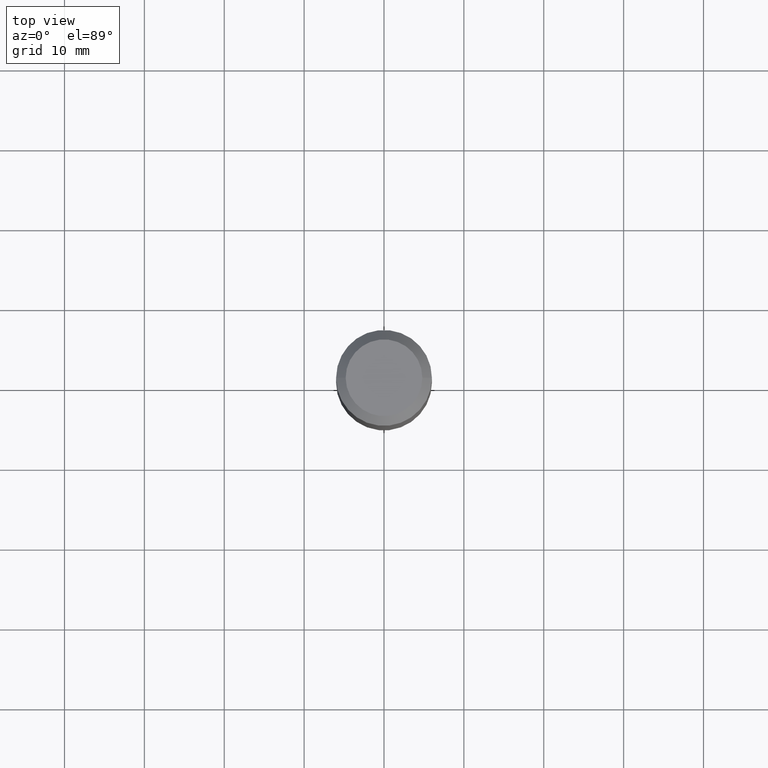
[diagram: clean part render]
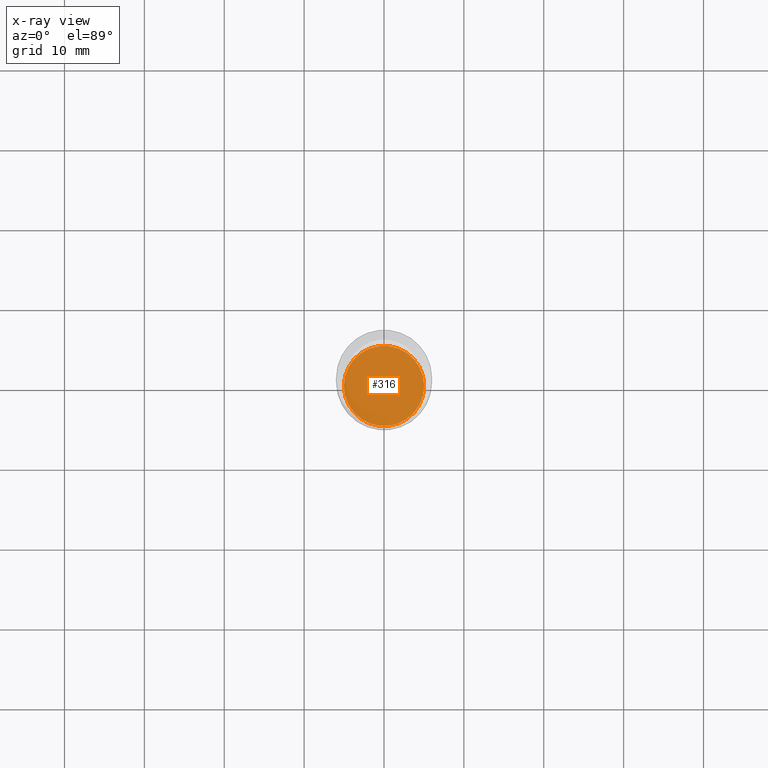
[diagram: x-ray — body ghosted, one internal face saturated and labeled with its STEP entity id]
A machine part, top view, then the same camera in x-ray: the body is ghosted and one INTERNAL B-rep face — a face not visible from any outside direction — is saturated and labeled: STEP entity #316.
In plain terms, the highlighted planar face has unit normal (-0, 0, 1).
Its self-contained STEP definition (entity closure, byte-faithful):
#42 = CARTESIAN_POINT ( 'NONE',  ( 0.1980000000000000093, -9.574689275509554760E-15, -2.346299999999999830 ) ) ;
#62 = PLANE ( 'NONE',  #366 ) ;
#98 = DIRECTION ( 'NONE',  ( 1.000000000000000000, -6.982962677686265922E-15, 4.876176775795935793E-29 ) ) ;
#110 = CIRCLE ( 'NONE', #396, 0.1980000000000000093 ) ;
#121 = VERTEX_POINT ( 'NONE', #182 ) ;
#163 = CARTESIAN_POINT ( 'NONE',  ( 3.477250939119132197E-29, -1.142930253781982442E-14, -2.346299999999999830 ) ) ;
#169 = DIRECTION ( 'NONE',  ( -2.445468806185136597E-29, 3.491481338843145583E-15, 1.000000000000000000 ) ) ;
#172 = CARTESIAN_POINT ( 'NONE',  ( 5.737803459952185617E-29, -8.192062665327673446E-15, -2.346299999999999830 ) ) ;
#182 = CARTESIAN_POINT ( 'NONE',  ( -0.1980000000000000093, -6.782538821348561839E-15, -2.346299999999999830 ) ) ;
#193 = ORIENTED_EDGE ( 'NONE', *, *, #243, .F. ) ;
#243 = EDGE_CURVE ( 'NONE', #429, #121, #110, .T. ) ;
#247 = DIRECTION ( 'NONE',  ( -2.445468806185136597E-29, 3.491481338843145583E-15, 1.000000000000000000 ) ) ;
#284 = DIRECTION ( 'NONE',  ( 1.000000000000000000, -6.982962677686269077E-15, 0.000000000000000000 ) ) ;
#316 = ADVANCED_FACE ( 'NONE', ( #458 ), #62, .F. ) ;
#323 = AXIS2_PLACEMENT_3D ( 'NONE', #358, #169, #399 ) ;
#358 = CARTESIAN_POINT ( 'NONE',  ( 5.737803459952185617E-29, -8.192062665327673446E-15, -2.346299999999999830 ) ) ;
#362 = DIRECTION ( 'NONE',  ( -2.438088387897960049E-29, 3.491481338843145188E-15, 1.000000000000000000 ) ) ;
#366 = AXIS2_PLACEMENT_3D ( 'NONE', #163, #362, #98 ) ;
#381 = EDGE_CURVE ( 'NONE', #121, #429, #473, .T. ) ;
#396 = AXIS2_PLACEMENT_3D ( 'NONE', #172, #247, #284 ) ;
#399 = DIRECTION ( 'NONE',  ( 1.000000000000000000, -6.982962677686269077E-15, 0.000000000000000000 ) ) ;
#428 = ORIENTED_EDGE ( 'NONE', *, *, #381, .F. ) ;
#429 = VERTEX_POINT ( 'NONE', #42 ) ;
#458 = FACE_OUTER_BOUND ( 'NONE', #508, .T. ) ;
#473 = CIRCLE ( 'NONE', #323, 0.1980000000000000093 ) ;
#508 = EDGE_LOOP ( 'NONE', ( #193, #428 ) ) ;